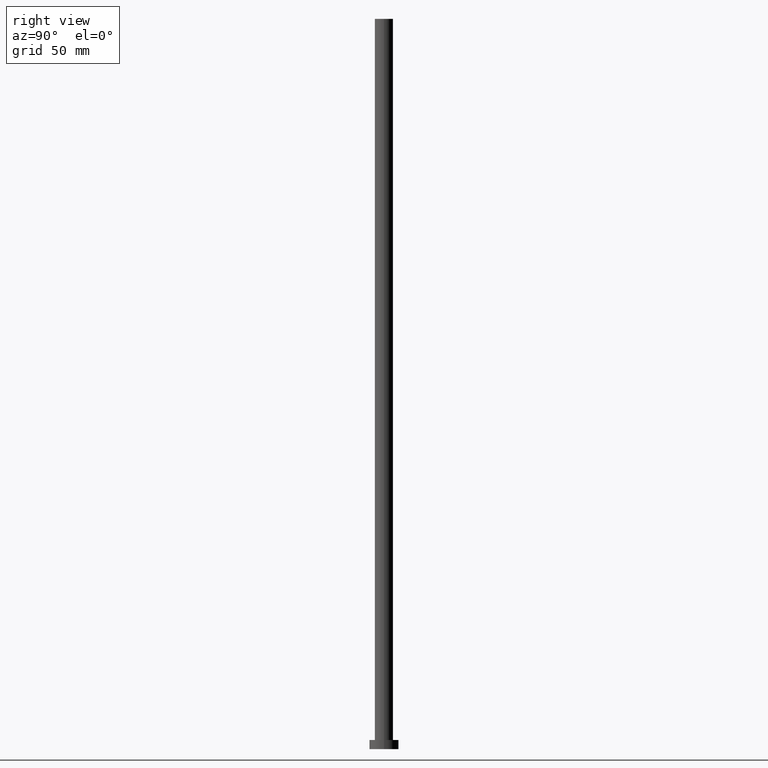
[diagram: clean part render]
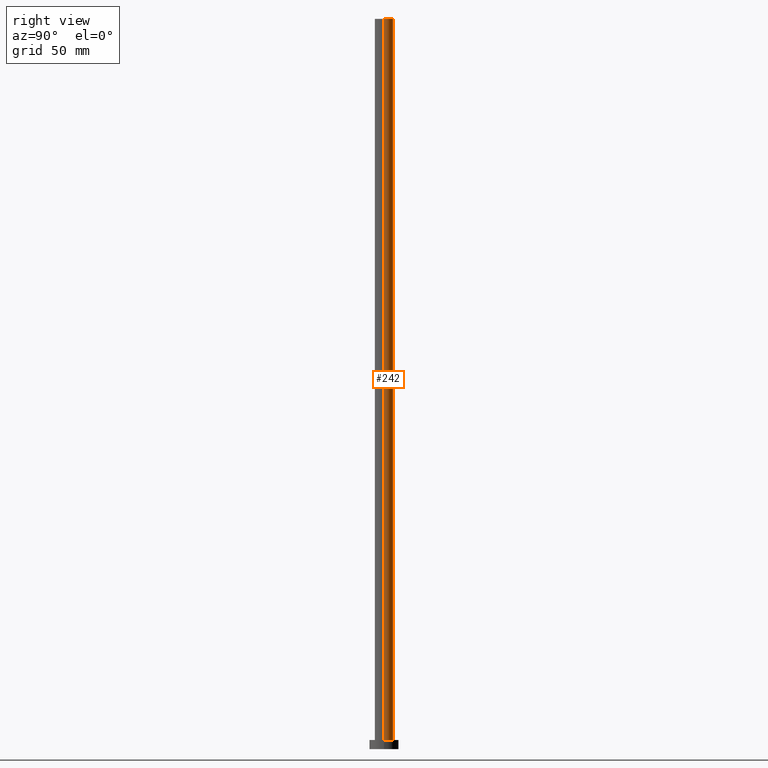
[diagram: same view with one face highlighted and labeled with its STEP entity id]
A machine part, right view. The second image highlights one B-rep face of the part: STEP entity #242.
In plain terms, the highlighted cylindrical surface (edge-blend (fillet) strip) has radius 5 mm, axis along (-0, -0, -1).
Its self-contained STEP definition (entity closure, byte-faithful):
#6 = VERTEX_POINT ( 'NONE', #255 ) ;
#7 = CYLINDRICAL_SURFACE ( 'NONE', #106, 5.000000000000000888 ) ;
#8 = CARTESIAN_POINT ( 'NONE',  ( 5.000000000000000888, 6.123233995736766282E-16, 400.0000000000000000 ) ) ;
#18 = AXIS2_PLACEMENT_3D ( 'NONE', #236, #214, #114 ) ;
#25 = CARTESIAN_POINT ( 'NONE',  ( 0.000000000000000000, 0.000000000000000000, 400.0000000000000000 ) ) ;
#28 = DIRECTION ( 'NONE',  ( 1.000000000000000000, 0.000000000000000000, 0.000000000000000000 ) ) ;
#39 = EDGE_CURVE ( 'NONE', #93, #88, #130, .T. ) ;
#40 = DIRECTION ( 'NONE',  ( -1.000000000000000000, 0.000000000000000000, 0.000000000000000000 ) ) ;
#59 = CARTESIAN_POINT ( 'NONE',  ( 5.000000000000000888, 6.123233995736766282E-16, 5.000000000000000000 ) ) ;
#62 = CIRCLE ( 'NONE', #124, 5.000000000000000888 ) ;
#71 = DIRECTION ( 'NONE',  ( -0.000000000000000000, -0.000000000000000000, -1.000000000000000000 ) ) ;
#79 = ORIENTED_EDGE ( 'NONE', *, *, #39, .T. ) ;
#83 = VECTOR ( 'NONE', #96, 1000.000000000000000 ) ;
#87 = FACE_OUTER_BOUND ( 'NONE', #174, .T. ) ;
#88 = VERTEX_POINT ( 'NONE', #59 ) ;
#89 = EDGE_CURVE ( 'NONE', #88, #6, #137, .T. ) ;
#93 = VERTEX_POINT ( 'NONE', #8 ) ;
#96 = DIRECTION ( 'NONE',  ( -0.000000000000000000, -0.000000000000000000, -1.000000000000000000 ) ) ;
#102 = EDGE_CURVE ( 'NONE', #156, #6, #134, .T. ) ;
#106 = AXIS2_PLACEMENT_3D ( 'NONE', #25, #71, #40 ) ;
#113 = EDGE_CURVE ( 'NONE', #93, #156, #62, .T. ) ;
#114 = DIRECTION ( 'NONE',  ( 1.000000000000000000, 0.000000000000000000, 0.000000000000000000 ) ) ;
#124 = AXIS2_PLACEMENT_3D ( 'NONE', #155, #209, #28 ) ;
#130 = LINE ( 'NONE', #194, #164 ) ;
#132 = ORIENTED_EDGE ( 'NONE', *, *, #102, .F. ) ;
#134 = LINE ( 'NONE', #229, #83 ) ;
#137 = CIRCLE ( 'NONE', #18, 5.000000000000000888 ) ;
#155 = CARTESIAN_POINT ( 'NONE',  ( 0.000000000000000000, 0.000000000000000000, 400.0000000000000000 ) ) ;
#156 = VERTEX_POINT ( 'NONE', #178 ) ;
#164 = VECTOR ( 'NONE', #234, 1000.000000000000000 ) ;
#174 = EDGE_LOOP ( 'NONE', ( #187, #79, #224, #132 ) ) ;
#178 = CARTESIAN_POINT ( 'NONE',  ( -5.000000000000000888, 0.000000000000000000, 400.0000000000000000 ) ) ;
#187 = ORIENTED_EDGE ( 'NONE', *, *, #113, .F. ) ;
#194 = CARTESIAN_POINT ( 'NONE',  ( 5.000000000000000888, 6.123233995736766282E-16, 400.0000000000000000 ) ) ;
#209 = DIRECTION ( 'NONE',  ( 0.000000000000000000, 0.000000000000000000, 1.000000000000000000 ) ) ;
#214 = DIRECTION ( 'NONE',  ( 0.000000000000000000, 0.000000000000000000, 1.000000000000000000 ) ) ;
#224 = ORIENTED_EDGE ( 'NONE', *, *, #89, .T. ) ;
#229 = CARTESIAN_POINT ( 'NONE',  ( -5.000000000000000888, 0.000000000000000000, 400.0000000000000000 ) ) ;
#234 = DIRECTION ( 'NONE',  ( -0.000000000000000000, -0.000000000000000000, -1.000000000000000000 ) ) ;
#236 = CARTESIAN_POINT ( 'NONE',  ( 0.000000000000000000, 0.000000000000000000, 5.000000000000000000 ) ) ;
#242 = ADVANCED_FACE ( 'NONE', ( #87 ), #7, .T. ) ;
#255 = CARTESIAN_POINT ( 'NONE',  ( -5.000000000000000888, 0.000000000000000000, 5.000000000000000000 ) ) ;